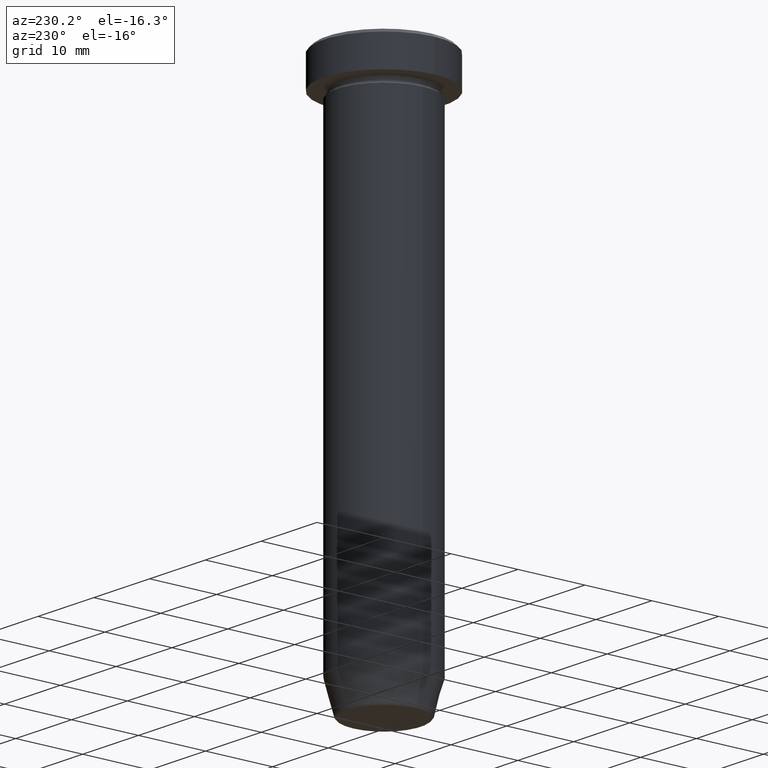
[diagram: clean part render]
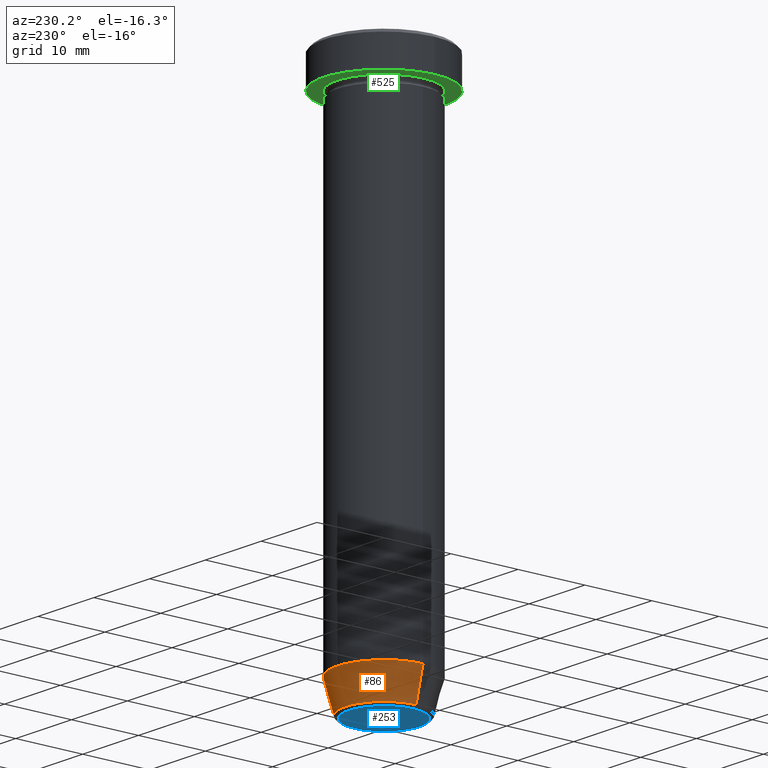
[diagram: same view with three faces highlighted in distinct colors, each labeled with its STEP entity id]
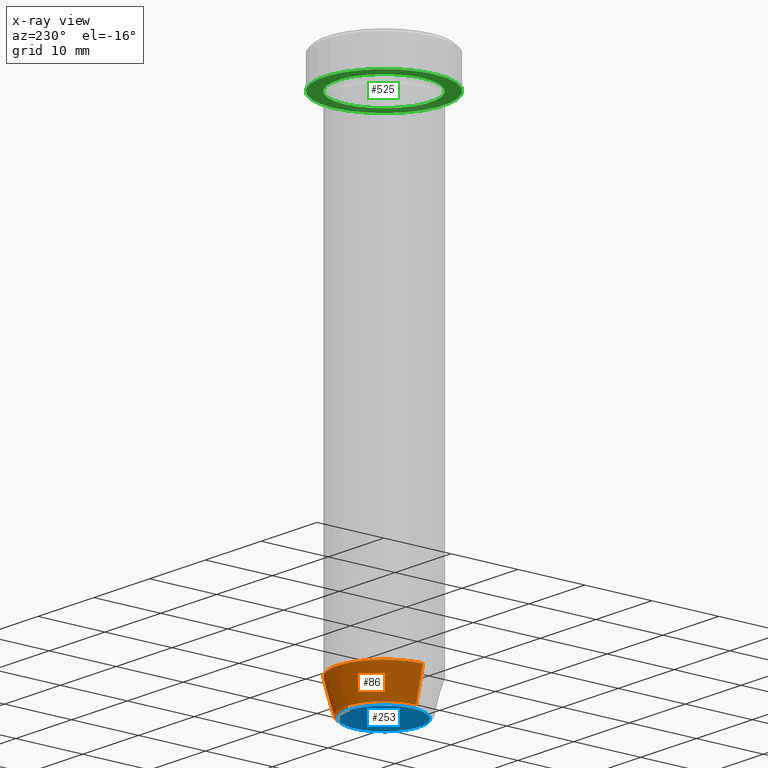
[diagram: x-ray of the same camera — body ghosted, the three highlighted faces saturated]
A machine part, auxiliary view with three faces highlighted in distinct colors.
The next image is the same camera in x-ray (body ghosted, the three faces saturated) — at least one of them is partly hidden behind the body in this view.
Their STEP definitions:

[orange] entity #86 — the highlighted conical surface has half-angle 15 deg.
#22 = CARTESIAN_POINT ( 'NONE',  ( -5.759553456999437770, 7.812973149831955717E-16, -79.62940952255127058 ) ) ;
#25 = CIRCLE ( 'NONE', #556, 5.759553456999437770 ) ;
#35 = EDGE_LOOP ( 'NONE', ( #157, #473, #569, #564 ) ) ;
#60 = VERTEX_POINT ( 'NONE', #22 ) ;
#86 = ADVANCED_FACE ( 'NONE', ( #372 ), #305, .T. ) ;
#97 = DIRECTION ( 'NONE',  ( -0.2588190451025210170, 3.169619151431768639E-17, 0.9659258262890680902 ) ) ;
#104 = CARTESIAN_POINT ( 'NONE',  ( 7.000000000000000000, 0.000000000000000000, -75.00000000000000000 ) ) ;
#125 = CARTESIAN_POINT ( 'NONE',  ( -5.660254037844383745, 6.931811989807006322E-16, -80.00000000000000000 ) ) ;
#135 = DIRECTION ( 'NONE',  ( 1.000000000000000000, 0.000000000000000000, 0.000000000000000000 ) ) ;
#136 = DIRECTION ( 'NONE',  ( -0.000000000000000000, -0.000000000000000000, 1.000000000000000000 ) ) ;
#157 = ORIENTED_EDGE ( 'NONE', *, *, #327, .T. ) ;
#159 = VERTEX_POINT ( 'NONE', #468 ) ;
#173 = DIRECTION ( 'NONE',  ( 0.2588190451025210170, 0.000000000000000000, 0.9659258262890680902 ) ) ;
#192 = CIRCLE ( 'NONE', #295, 7.000000000000000000 ) ;
#208 = CARTESIAN_POINT ( 'NONE',  ( -7.000000000000000000, 8.572527594031473190E-16, -75.00000000000000000 ) ) ;
#230 = DIRECTION ( 'NONE',  ( 1.000000000000000000, 0.000000000000000000, 0.000000000000000000 ) ) ;
#231 = LINE ( 'NONE', #267, #307 ) ;
#263 = AXIS2_PLACEMENT_3D ( 'NONE', #495, #339, #135 ) ;
#267 = CARTESIAN_POINT ( 'NONE',  ( 5.660254037844383745, 0.000000000000000000, -80.00000000000000000 ) ) ;
#280 = DIRECTION ( 'NONE',  ( -0.000000000000000000, -0.000000000000000000, 1.000000000000000000 ) ) ;
#292 = EDGE_CURVE ( 'NONE', #395, #354, #192, .T. ) ;
#295 = AXIS2_PLACEMENT_3D ( 'NONE', #554, #136, #230 ) ;
#304 = EDGE_CURVE ( 'NONE', #60, #354, #590, .T. ) ;
#305 = CONICAL_SURFACE ( 'NONE', #263, 5.660254037844383745, 0.2617993877991497409 ) ;
#307 = VECTOR ( 'NONE', #173, 1000.000000000000114 ) ;
#327 = EDGE_CURVE ( 'NONE', #159, #60, #25, .T. ) ;
#339 = DIRECTION ( 'NONE',  ( -0.000000000000000000, -0.000000000000000000, 1.000000000000000000 ) ) ;
#354 = VERTEX_POINT ( 'NONE', #208 ) ;
#369 = CARTESIAN_POINT ( 'NONE',  ( 0.000000000000000000, 0.000000000000000000, -79.62940952255127058 ) ) ;
#372 = FACE_OUTER_BOUND ( 'NONE', #35, .T. ) ;
#395 = VERTEX_POINT ( 'NONE', #104 ) ;
#428 = EDGE_CURVE ( 'NONE', #159, #395, #231, .T. ) ;
#468 = CARTESIAN_POINT ( 'NONE',  ( 5.759553456999437770, 0.000000000000000000, -79.62940952255127058 ) ) ;
#473 = ORIENTED_EDGE ( 'NONE', *, *, #304, .T. ) ;
#478 = DIRECTION ( 'NONE',  ( -1.000000000000000000, 0.000000000000000000, 0.000000000000000000 ) ) ;
#495 = CARTESIAN_POINT ( 'NONE',  ( 0.000000000000000000, 0.000000000000000000, -80.00000000000000000 ) ) ;
#544 = VECTOR ( 'NONE', #97, 1000.000000000000114 ) ;
#554 = CARTESIAN_POINT ( 'NONE',  ( 0.000000000000000000, 0.000000000000000000, -75.00000000000000000 ) ) ;
#556 = AXIS2_PLACEMENT_3D ( 'NONE', #369, #280, #478 ) ;
#564 = ORIENTED_EDGE ( 'NONE', *, *, #428, .F. ) ;
#569 = ORIENTED_EDGE ( 'NONE', *, *, #292, .F. ) ;
#590 = LINE ( 'NONE', #125, #544 ) ;

[blue] entity #253 — the highlighted planar face has unit normal (0, -0, 1).
#4 = DIRECTION ( 'NONE',  ( 0.000000000000000000, 0.000000000000000000, -1.000000000000000000 ) ) ;
#5 = CIRCLE ( 'NONE', #352, 5.276590543854903004 ) ;
#9 = DIRECTION ( 'NONE',  ( 0.000000000000000000, 0.000000000000000000, -1.000000000000000000 ) ) ;
#18 = AXIS2_PLACEMENT_3D ( 'NONE', #34, #161, #486 ) ;
#34 = CARTESIAN_POINT ( 'NONE',  ( 0.000000000000000000, 3.673940397442059178E-15, -80.00000000000000000 ) ) ;
#83 = CARTESIAN_POINT ( 'NONE',  ( 5.276590543854903004, 0.000000000000000000, -80.00000000000000000 ) ) ;
#100 = EDGE_CURVE ( 'NONE', #302, #204, #403, .T. ) ;
#134 = ORIENTED_EDGE ( 'NONE', *, *, #100, .T. ) ;
#161 = DIRECTION ( 'NONE',  ( 0.000000000000000000, -0.000000000000000000, 1.000000000000000000 ) ) ;
#186 = EDGE_CURVE ( 'NONE', #204, #302, #5, .T. ) ;
#204 = VERTEX_POINT ( 'NONE', #419 ) ;
#228 = ORIENTED_EDGE ( 'NONE', *, *, #186, .T. ) ;
#234 = CARTESIAN_POINT ( 'NONE',  ( 0.000000000000000000, 0.000000000000000000, -80.00000000000000000 ) ) ;
#250 = EDGE_LOOP ( 'NONE', ( #134, #228 ) ) ;
#253 = ADVANCED_FACE ( 'NONE', ( #359 ), #316, .F. ) ;
#302 = VERTEX_POINT ( 'NONE', #83 ) ;
#316 = PLANE ( 'NONE',  #18 ) ;
#325 = CARTESIAN_POINT ( 'NONE',  ( 0.000000000000000000, 0.000000000000000000, -80.00000000000000000 ) ) ;
#352 = AXIS2_PLACEMENT_3D ( 'NONE', #234, #9, #561 ) ;
#359 = FACE_OUTER_BOUND ( 'NONE', #250, .T. ) ;
#403 = CIRCLE ( 'NONE', #450, 5.276590543854903004 ) ;
#419 = CARTESIAN_POINT ( 'NONE',  ( -5.276590543854903004, 6.757689212787765916E-16, -80.00000000000000000 ) ) ;
#450 = AXIS2_PLACEMENT_3D ( 'NONE', #325, #4, #508 ) ;
#486 = DIRECTION ( 'NONE',  ( 1.000000000000000000, 0.000000000000000000, 0.000000000000000000 ) ) ;
#508 = DIRECTION ( 'NONE',  ( 1.000000000000000000, 0.000000000000000000, 0.000000000000000000 ) ) ;
#561 = DIRECTION ( 'NONE',  ( 1.000000000000000000, 0.000000000000000000, 0.000000000000000000 ) ) ;

[green] entity #525 — the highlighted planar face has unit normal (0, 0, -1).
#23 = VERTEX_POINT ( 'NONE', #236 ) ;
#33 = DIRECTION ( 'NONE',  ( 0.000000000000000000, 0.000000000000000000, -1.000000000000000000 ) ) ;
#40 = PLANE ( 'NONE',  #346 ) ;
#46 = DIRECTION ( 'NONE',  ( 1.000000000000000000, 0.000000000000000000, 0.000000000000000000 ) ) ;
#61 = DIRECTION ( 'NONE',  ( -1.000000000000000000, 0.000000000000000000, 0.000000000000000000 ) ) ;
#81 = AXIS2_PLACEMENT_3D ( 'NONE', #500, #288, #61 ) ;
#96 = FACE_BOUND ( 'NONE', #548, .T. ) ;
#98 = CARTESIAN_POINT ( 'NONE',  ( 7.000000000000000888, 8.572527594031474176E-16, -4.999999999999999112 ) ) ;
#111 = CARTESIAN_POINT ( 'NONE',  ( 0.000000000000000000, 0.000000000000000000, -5.000000000000000000 ) ) ;
#124 = DIRECTION ( 'NONE',  ( -1.000000000000000000, 0.000000000000000000, -0.000000000000000000 ) ) ;
#169 = ORIENTED_EDGE ( 'NONE', *, *, #409, .T. ) ;
#170 = EDGE_CURVE ( 'NONE', #426, #591, #306, .T. ) ;
#194 = CIRCLE ( 'NONE', #424, 7.000000000000000888 ) ;
#222 = CARTESIAN_POINT ( 'NONE',  ( 0.000000000000000000, 9.000000000000000000, -5.000000000000000000 ) ) ;
#227 = CARTESIAN_POINT ( 'NONE',  ( 0.000000000000000000, 0.000000000000000000, -5.000000000000000000 ) ) ;
#236 = CARTESIAN_POINT ( 'NONE',  ( -7.000000000000000888, 0.000000000000000000, -4.999999999999999112 ) ) ;
#258 = DIRECTION ( 'NONE',  ( -0.000000000000000000, -0.000000000000000000, 1.000000000000000000 ) ) ;
#286 = CIRCLE ( 'NONE', #534, 9.000000000000000000 ) ;
#288 = DIRECTION ( 'NONE',  ( -0.000000000000000000, -0.000000000000000000, 1.000000000000000000 ) ) ;
#300 = EDGE_LOOP ( 'NONE', ( #575, #479 ) ) ;
#306 = CIRCLE ( 'NONE', #517, 9.000000000000000000 ) ;
#346 = AXIS2_PLACEMENT_3D ( 'NONE', #222, #33, #124 ) ;
#370 = CARTESIAN_POINT ( 'NONE',  ( 9.000000000000000000, 0.000000000000000000, -5.000000000000000000 ) ) ;
#373 = DIRECTION ( 'NONE',  ( -0.000000000000000000, -0.000000000000000000, 1.000000000000000000 ) ) ;
#377 = CIRCLE ( 'NONE', #81, 7.000000000000000888 ) ;
#393 = CARTESIAN_POINT ( 'NONE',  ( 0.000000000000000000, 0.000000000000000000, -5.000000000000000000 ) ) ;
#401 = VERTEX_POINT ( 'NONE', #98 ) ;
#409 = EDGE_CURVE ( 'NONE', #401, #23, #377, .T. ) ;
#420 = DIRECTION ( 'NONE',  ( -0.000000000000000000, -0.000000000000000000, 1.000000000000000000 ) ) ;
#424 = AXIS2_PLACEMENT_3D ( 'NONE', #111, #373, #555 ) ;
#426 = VERTEX_POINT ( 'NONE', #370 ) ;
#479 = ORIENTED_EDGE ( 'NONE', *, *, #491, .F. ) ;
#482 = EDGE_CURVE ( 'NONE', #23, #401, #194, .T. ) ;
#491 = EDGE_CURVE ( 'NONE', #591, #426, #286, .T. ) ;
#500 = CARTESIAN_POINT ( 'NONE',  ( 0.000000000000000000, 0.000000000000000000, -5.000000000000000000 ) ) ;
#517 = AXIS2_PLACEMENT_3D ( 'NONE', #227, #420, #46 ) ;
#525 = ADVANCED_FACE ( 'NONE', ( #96, #549 ), #40, .T. ) ;
#534 = AXIS2_PLACEMENT_3D ( 'NONE', #393, #258, #574 ) ;
#535 = CARTESIAN_POINT ( 'NONE',  ( -9.000000000000000000, 1.102182119232617714E-15, -5.000000000000000000 ) ) ;
#548 = EDGE_LOOP ( 'NONE', ( #557, #169 ) ) ;
#549 = FACE_OUTER_BOUND ( 'NONE', #300, .T. ) ;
#555 = DIRECTION ( 'NONE',  ( -1.000000000000000000, 0.000000000000000000, 0.000000000000000000 ) ) ;
#557 = ORIENTED_EDGE ( 'NONE', *, *, #482, .T. ) ;
#574 = DIRECTION ( 'NONE',  ( 1.000000000000000000, 0.000000000000000000, 0.000000000000000000 ) ) ;
#575 = ORIENTED_EDGE ( 'NONE', *, *, #170, .F. ) ;
#591 = VERTEX_POINT ( 'NONE', #535 ) ;